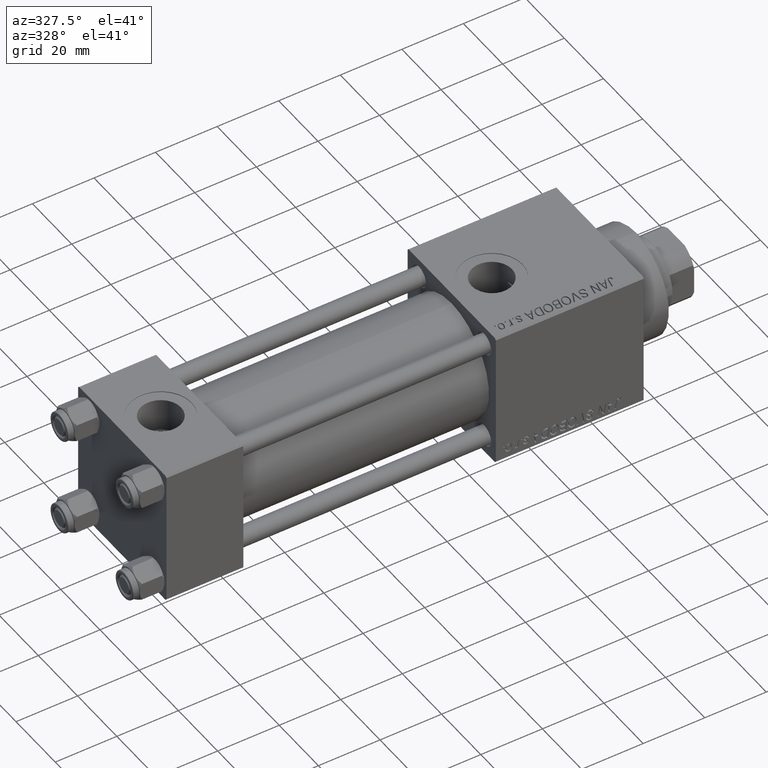
[diagram: clean part render]
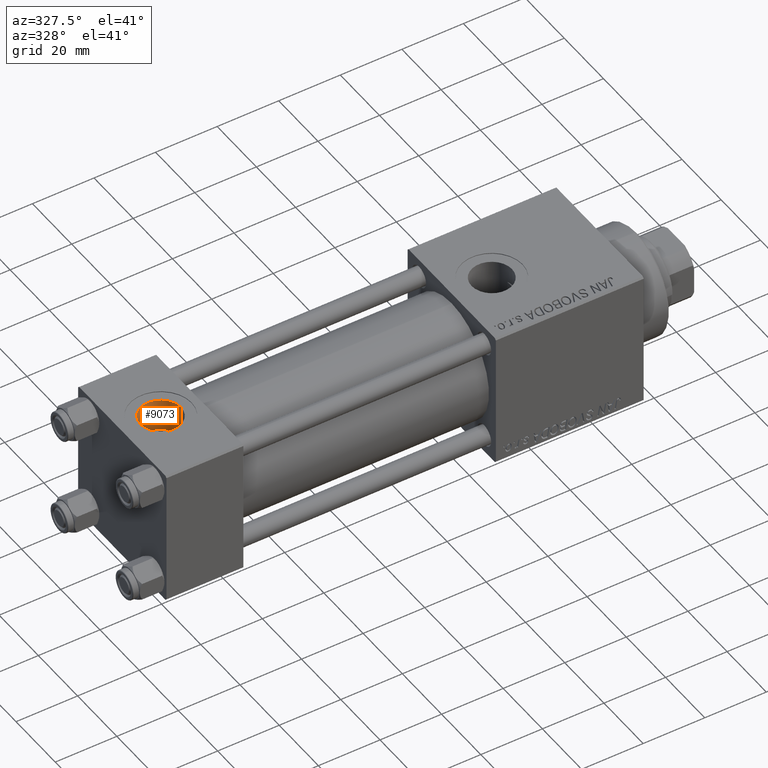
[diagram: same view with one face highlighted and labeled with its STEP entity id]
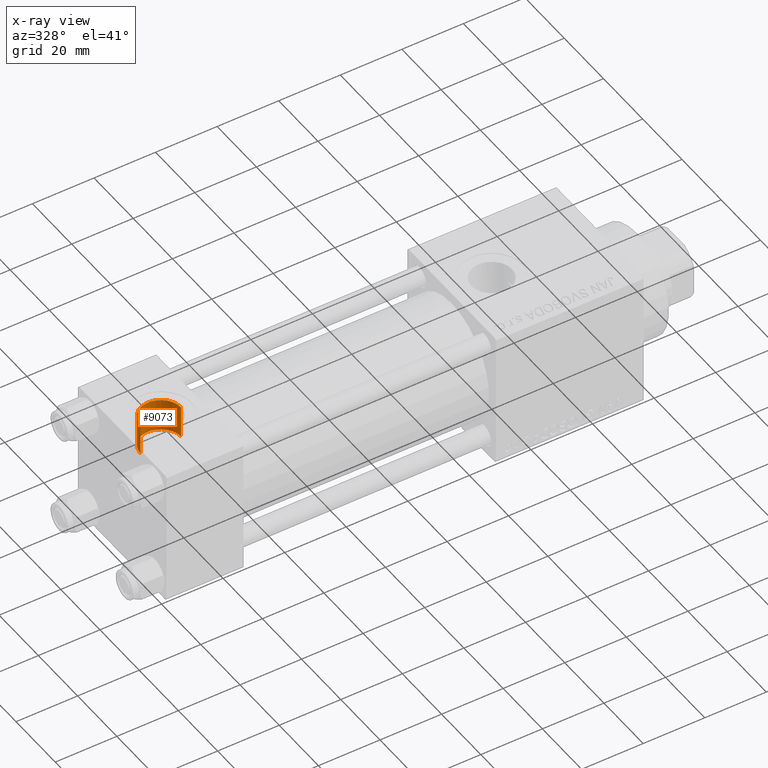
[diagram: x-ray of the same camera — body ghosted, the highlighted face saturated]
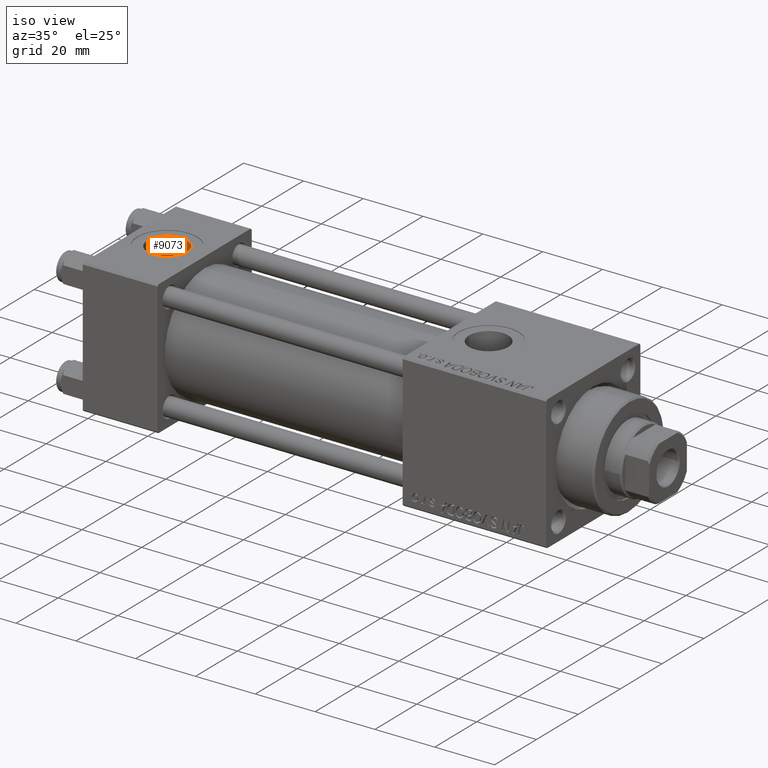
[diagram: same view with one face highlighted and labeled with its STEP entity id]
A machine part, auxiliary view. The second image highlights one B-rep face of the part: STEP entity #9073.
The next image is the same camera in x-ray: the body ghosted, the highlighted face saturated — about 0% of this face is hidden behind the body in this view.
A second angle (iso view) of the same face is appended — the face is thin or edge-on in the first view.
In plain terms, the highlighted cylindrical surface (edge-blend (fillet) strip) has radius 6.58 mm, axis along (0, 0, 1).
Its self-contained STEP definition (entity closure, byte-faithful):
#724 = CARTESIAN_POINT ( 'NONE',  ( 5.920000000000002593, -9.289058821378490386E-16, 11.69999999999999929 ) ) ;
#1188 = CARTESIAN_POINT ( 'NONE',  ( 12.50000000000000000, -1.734723475976807094E-15, 11.69999999999999929 ) ) ;
#1997 = DIRECTION ( 'NONE',  ( -0.000000000000000000, -0.000000000000000000, -1.000000000000000000 ) ) ;
#2230 = ORIENTED_EDGE ( 'NONE', *, *, #11016, .T. ) ;
#2369 = VERTEX_POINT ( 'NONE', #31995 ) ;
#2386 = AXIS2_PLACEMENT_3D ( 'NONE', #1188, #5491, #16676 ) ;
#4613 = CARTESIAN_POINT ( 'NONE',  ( 5.920000000000002593, -9.289058821378490386E-16, 22.30000000000000071 ) ) ;
#5252 = FACE_OUTER_BOUND ( 'NONE', #22845, .T. ) ;
#5491 = DIRECTION ( 'NONE',  ( -0.000000000000000000, -0.000000000000000000, 1.000000000000000000 ) ) ;
#6725 = ORIENTED_EDGE ( 'NONE', *, *, #48953, .F. ) ;
#6800 = VERTEX_POINT ( 'NONE', #8229 ) ;
#7840 = DIRECTION ( 'NONE',  ( -0.000000000000000000, -0.000000000000000000, 1.000000000000000000 ) ) ;
#8229 = CARTESIAN_POINT ( 'NONE',  ( 19.07999999999999829, -1.734723475976807094E-15, 22.30000000000000071 ) ) ;
#8576 = ORIENTED_EDGE ( 'NONE', *, *, #42035, .T. ) ;
#8783 = EDGE_CURVE ( 'NONE', #2369, #10361, #11307, .T. ) ;
#9073 = ADVANCED_FACE ( 'NONE', ( #5252 ), #16428, .F. ) ;
#9114 = DIRECTION ( 'NONE',  ( -0.000000000000000000, -0.000000000000000000, 1.000000000000000000 ) ) ;
#10361 = VERTEX_POINT ( 'NONE', #17873 ) ;
#11016 = EDGE_CURVE ( 'NONE', #6800, #41742, #38934, .T. ) ;
#11307 = CIRCLE ( 'NONE', #15363, 6.579999999999999183 ) ;
#12155 = LINE ( 'NONE', #724, #21443 ) ;
#13176 = CARTESIAN_POINT ( 'NONE',  ( 19.07999999999999829, -1.734723475976807094E-15, 11.69999999999999929 ) ) ;
#15363 = AXIS2_PLACEMENT_3D ( 'NONE', #31972, #1997, #39822 ) ;
#16378 = VECTOR ( 'NONE', #9114, 1000.000000000000000 ) ;
#16428 = CYLINDRICAL_SURFACE ( 'NONE', #2386, 6.579999999999999183 ) ;
#16676 = DIRECTION ( 'NONE',  ( 1.000000000000000000, 0.000000000000000000, 0.000000000000000000 ) ) ;
#17873 = CARTESIAN_POINT ( 'NONE',  ( 19.07999999999999829, -1.734723475976807094E-15, 11.66598726114649409 ) ) ;
#21443 = VECTOR ( 'NONE', #7840, 1000.000000000000000 ) ;
#22845 = EDGE_LOOP ( 'NONE', ( #6725, #26024, #8576, #2230 ) ) ;
#26024 = ORIENTED_EDGE ( 'NONE', *, *, #8783, .T. ) ;
#27304 = DIRECTION ( 'NONE',  ( 0.000000000000000000, 0.000000000000000000, 1.000000000000000000 ) ) ;
#31972 = CARTESIAN_POINT ( 'NONE',  ( 12.50000000000000000, -1.734723475976807094E-15, 11.66598726114649409 ) ) ;
#31995 = CARTESIAN_POINT ( 'NONE',  ( 5.920000000000002593, -9.289058821378490386E-16, 11.66598726114649409 ) ) ;
#38934 = CIRCLE ( 'NONE', #48636, 6.579999999999999183 ) ;
#39822 = DIRECTION ( 'NONE',  ( 1.000000000000000000, 0.000000000000000000, 0.000000000000000000 ) ) ;
#40069 = LINE ( 'NONE', #13176, #16378 ) ;
#41742 = VERTEX_POINT ( 'NONE', #4613 ) ;
#42035 = EDGE_CURVE ( 'NONE', #10361, #6800, #40069, .T. ) ;
#42764 = DIRECTION ( 'NONE',  ( 1.000000000000000000, 0.000000000000000000, 0.000000000000000000 ) ) ;
#46585 = CARTESIAN_POINT ( 'NONE',  ( 12.50000000000000000, -1.734723475976807094E-15, 22.30000000000000071 ) ) ;
#48636 = AXIS2_PLACEMENT_3D ( 'NONE', #46585, #27304, #42764 ) ;
#48953 = EDGE_CURVE ( 'NONE', #2369, #41742, #12155, .T. ) ;